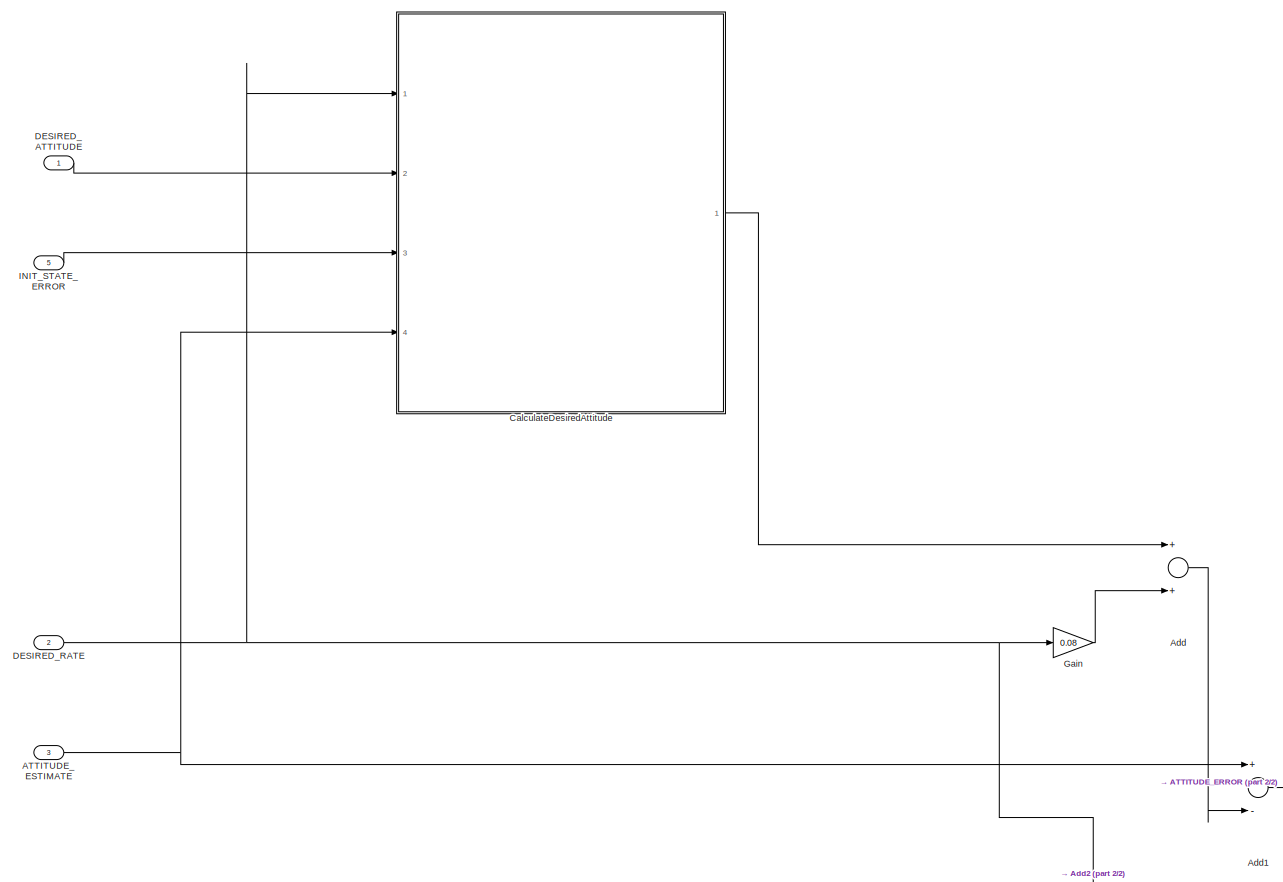
[diagram: root canvas - part 1/2, most of the canvas]
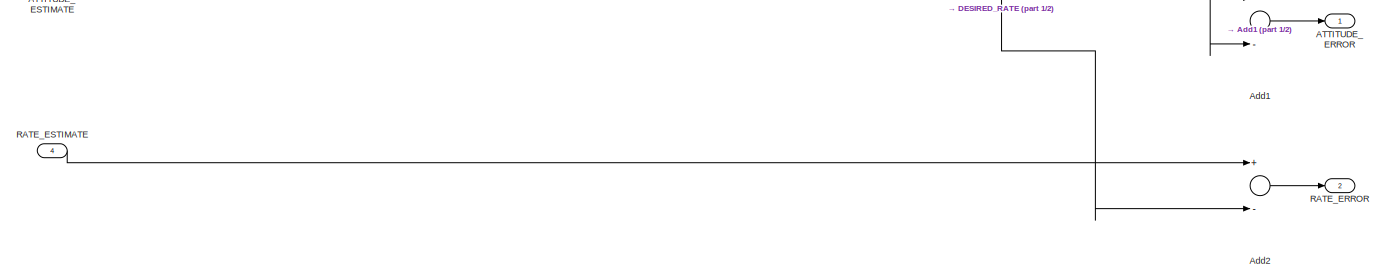
[diagram: root canvas - part 2/2, full width, bottom band]
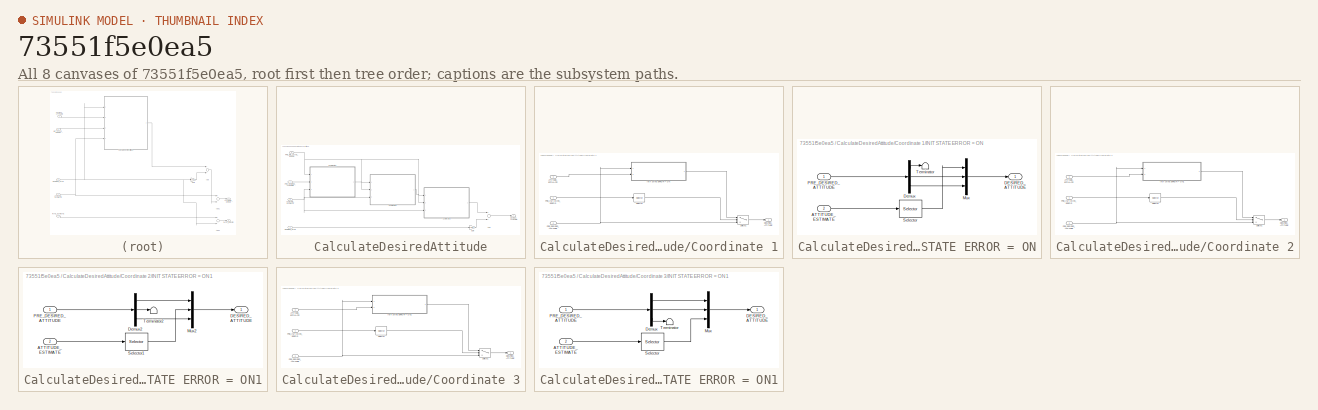
[diagram: thumbnail index - all 8 canvases of the model, root first then tree order]
MODEL slx_73551f5e0ea5
KIND model
CONFIG AbsTol = auto
CONFIG EnableMultiTasking = off
CONFIG FixedStep = 0.08
CONFIG MaxStep = auto
CONFIG MinStep = auto
CONFIG RelTol = 1e-3
CONFIG SampleTimeConstraint = Unconstrained
CONFIG Solver = FixedStepAuto
CONFIG SolverName = FixedStepAuto
CONFIG StartTime = 0.0
CONFIG StopTime = 10.0
BLOCK [Outport] ATTITUDE_ERROR
  IconDisplay = Port number
BLOCK [Inport] ATTITUDE_ESTIMATE
  IconDisplay = Port number
  Port = 3
  PortDimensions = 3
BLOCK [Sum] Add
  InputSameDT = off
  OutDataTypeStr = Inherit: Inherit via internal rule
  Ports = [2, 1]
  SaturateOnIntegerOverflow = off
BLOCK [Sum] Add1
  InputSameDT = off
  Inputs = +-
  OutDataTypeStr = Inherit: Inherit via internal rule
  Ports = [2, 1]
  SaturateOnIntegerOverflow = off
BLOCK [Sum] Add2
  InputSameDT = off
  Inputs = +-
  OutDataTypeStr = Inherit: Inherit via internal rule
  Ports = [2, 1]
  SaturateOnIntegerOverflow = off
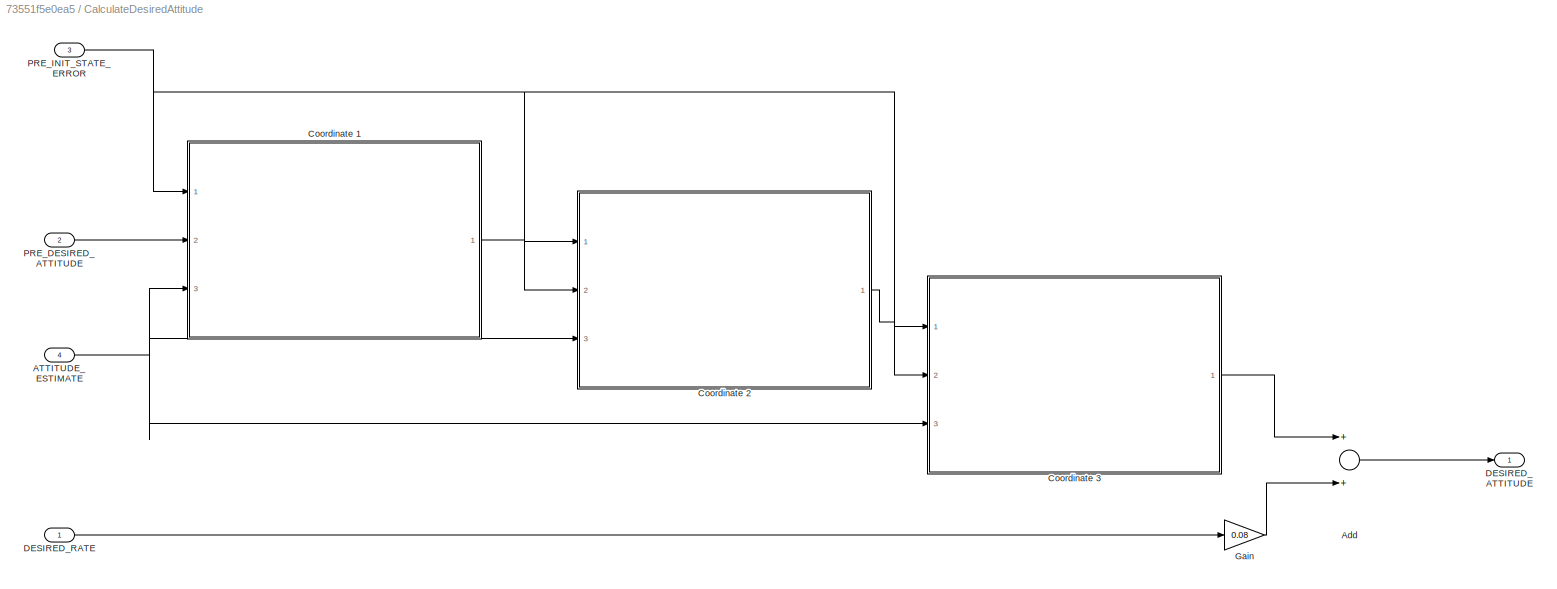
BLOCK [SubSystem] CalculateDesiredAttitude
  Ports = [4, 1]
  RequestExecContextInheritance = off
  Variant = off
BLOCK [Inport] CalculateDesiredAttitude/ATTITUDE_ESTIMATE
  IconDisplay = Port number
  Port = 4
  PortDimensions = 3
BLOCK [Sum] CalculateDesiredAttitude/Add
  InputSameDT = off
  OutDataTypeStr = Inherit: Inherit via internal rule
  Ports = [2, 1]
  SaturateOnIntegerOverflow = off
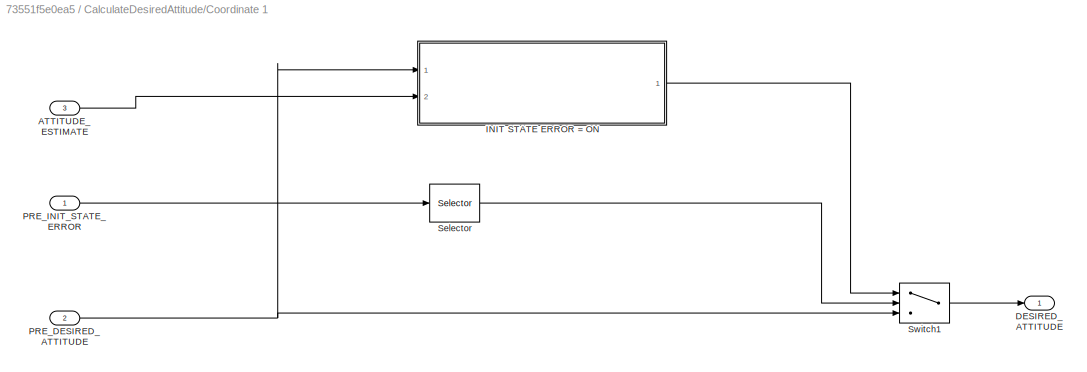
BLOCK [SubSystem] CalculateDesiredAttitude/Coordinate 1
  Ports = [3, 1]
  RequestExecContextInheritance = off
  Variant = off
BLOCK [Inport] CalculateDesiredAttitude/Coordinate 1/ATTITUDE_ESTIMATE
  IconDisplay = Port number
  Port = 3
BLOCK [Outport] CalculateDesiredAttitude/Coordinate 1/DESIRED_ATTITUDE
  IconDisplay = Port number
BLOCK [SubSystem] CalculateDesiredAttitude/Coordinate 1/INIT STATE ERROR = ON
  Ports = [2, 1]
  RequestExecContextInheritance = off
  TreatAsAtomicUnit = on
  Variant = off
BLOCK [Inport] CalculateDesiredAttitude/Coordinate 1/INIT STATE ERROR = ON/ATTITUDE_ESTIMATE
  IconDisplay = Port number
  Port = 2
BLOCK [Outport] CalculateDesiredAttitude/Coordinate 1/INIT STATE ERROR = ON/DESIRED_ATTITUDE
  IconDisplay = Port number
BLOCK [Demux] CalculateDesiredAttitude/Coordinate 1/INIT STATE ERROR = ON/Demux
  DisplayOption = bar
  Outputs = 3
  Ports = [1, 3]
BLOCK [Mux] CalculateDesiredAttitude/Coordinate 1/INIT STATE ERROR = ON/Mux
  DisplayOption = bar
  Inputs = 3
  Ports = [3, 1]
BLOCK [Inport] CalculateDesiredAttitude/Coordinate 1/INIT STATE ERROR = ON/PRE_DESIRED_ATTITUDE
  IconDisplay = Port number
BLOCK [Selector] CalculateDesiredAttitude/Coordinate 1/INIT STATE ERROR = ON/Selector
  IndexOptions = Index vector (dialog)
  Indices = [1]
  InputPortWidth = 3
  OutputSizes = 1
  Ports = [1, 1]
BLOCK [Terminator] CalculateDesiredAttitude/Coordinate 1/INIT STATE ERROR = ON/Terminator
BLOCK [Inport] CalculateDesiredAttitude/Coordinate 1/PRE_DESIRED_ATTITUDE
  IconDisplay = Port number
  Port = 2
BLOCK [Inport] CalculateDesiredAttitude/Coordinate 1/PRE_INIT_STATE_ERROR
  IconDisplay = Port number
BLOCK [Selector] CalculateDesiredAttitude/Coordinate 1/Selector
  IndexOptions = Index vector (dialog)
  Indices = [1]
  InputPortWidth = 3
  OutputSizes = 1
  Ports = [1, 1]
BLOCK [Switch] CalculateDesiredAttitude/Coordinate 1/Switch1
  Criteria = u2 ~= 0
  InputSameDT = off
  SaturateOnIntegerOverflow = off
BLOCK [SubSystem] CalculateDesiredAttitude/Coordinate 2
  Ports = [3, 1]
  RequestExecContextInheritance = off
  Variant = off
BLOCK [Inport] CalculateDesiredAttitude/Coordinate 2/ATTITUDE_ESTIMATE
  IconDisplay = Port number
  Port = 3
BLOCK [Outport] CalculateDesiredAttitude/Coordinate 2/DESIRED_ATTITUDE
  IconDisplay = Port number
BLOCK [SubSystem] CalculateDesiredAttitude/Coordinate 2/INIT STATE ERROR = ON1
  Ports = [2, 1]
  RequestExecContextInheritance = off
  TreatAsAtomicUnit = on
  Variant = off
BLOCK [Inport] CalculateDesiredAttitude/Coordinate 2/INIT STATE ERROR = ON1/ATTITUDE_ESTIMATE
  IconDisplay = Port number
  Port = 2
BLOCK [Outport] CalculateDesiredAttitude/Coordinate 2/INIT STATE ERROR = ON1/DESIRED_ATTITUDE
  IconDisplay = Port number
BLOCK [Demux] CalculateDesiredAttitude/Coordinate 2/INIT STATE ERROR = ON1/Demux2
  DisplayOption = bar
  Outputs = 3
  Ports = [1, 3]
BLOCK [Mux] CalculateDesiredAttitude/Coordinate 2/INIT STATE ERROR = ON1/Mux2
  DisplayOption = bar
  Inputs = 3
  Ports = [3, 1]
BLOCK [Inport] CalculateDesiredAttitude/Coordinate 2/INIT STATE ERROR = ON1/PRE_DESIRED_ATTITUDE
  IconDisplay = Port number
BLOCK [Selector] CalculateDesiredAttitude/Coordinate 2/INIT STATE ERROR = ON1/Selector1
  IndexOptions = Index vector (dialog)
  Indices = 2
  InputPortWidth = 3
  OutputSizes = 1
  Ports = [1, 1]
BLOCK [Terminator] CalculateDesiredAttitude/Coordinate 2/INIT STATE ERROR = ON1/Terminator2
BLOCK [Inport] CalculateDesiredAttitude/Coordinate 2/PRE_DESIRED_ATTITUDE
  IconDisplay = Port number
  Port = 2
BLOCK [Inport] CalculateDesiredAttitude/Coordinate 2/PRE_INIT_STATE_ERROR
  IconDisplay = Port number
BLOCK [Selector] CalculateDesiredAttitude/Coordinate 2/Selector
  IndexOptions = Index vector (dialog)
  Indices = 2
  InputPortWidth = 3
  OutputSizes = 1
  Ports = [1, 1]
BLOCK [Switch] CalculateDesiredAttitude/Coordinate 2/Switch1
  Criteria = u2 ~= 0
  InputSameDT = off
  SaturateOnIntegerOverflow = off
BLOCK [SubSystem] CalculateDesiredAttitude/Coordinate 3
  Ports = [3, 1]
  RequestExecContextInheritance = off
  Variant = off
BLOCK [Inport] CalculateDesiredAttitude/Coordinate 3/ATTITUDE_ESTIMATE
  IconDisplay = Port number
  Port = 3
BLOCK [Outport] CalculateDesiredAttitude/Coordinate 3/DESIRED_ATTITUDE
  IconDisplay = Port number
BLOCK [SubSystem] CalculateDesiredAttitude/Coordinate 3/INIT STATE ERROR = ON1
  Ports = [2, 1]
  RequestExecContextInheritance = off
  TreatAsAtomicUnit = on
  Variant = off
BLOCK [Inport] CalculateDesiredAttitude/Coordinate 3/INIT STATE ERROR = ON1/ATTITUDE_ESTIMATE
  IconDisplay = Port number
  Port = 2
BLOCK [Outport] CalculateDesiredAttitude/Coordinate 3/INIT STATE ERROR = ON1/DESIRED_ATTITUDE
  IconDisplay = Port number
BLOCK [Demux] CalculateDesiredAttitude/Coordinate 3/INIT STATE ERROR = ON1/Demux
  DisplayOption = bar
  Outputs = 3
  Ports = [1, 3]
BLOCK [Mux] CalculateDesiredAttitude/Coordinate 3/INIT STATE ERROR = ON1/Mux
  DisplayOption = bar
  Inputs = 3
  Ports = [3, 1]
BLOCK [Inport] CalculateDesiredAttitude/Coordinate 3/INIT STATE ERROR = ON1/PRE_DESIRED_ATTITUDE
  IconDisplay = Port number
BLOCK [Selector] CalculateDesiredAttitude/Coordinate 3/INIT STATE ERROR = ON1/Selector
  IndexOptions = Index vector (dialog)
  Indices = 3
  InputPortWidth = 3
  OutputSizes = 1
  Ports = [1, 1]
BLOCK [Terminator] CalculateDesiredAttitude/Coordinate 3/INIT STATE ERROR = ON1/Terminator
BLOCK [Inport] CalculateDesiredAttitude/Coordinate 3/PRE_DESIRED_ATTITUDE
  IconDisplay = Port number
  Port = 2
BLOCK [Inport] CalculateDesiredAttitude/Coordinate 3/PRE_INIT_STATE_ERROR
  IconDisplay = Port number
BLOCK [Selector] CalculateDesiredAttitude/Coordinate 3/Selector
  IndexOptions = Index vector (dialog)
  Indices = 3
  InputPortWidth = 3
  OutputSizes = 1
  Ports = [1, 1]
BLOCK [Switch] CalculateDesiredAttitude/Coordinate 3/Switch1
  Criteria = u2 ~= 0
  InputSameDT = off
  SaturateOnIntegerOverflow = off
BLOCK [Outport] CalculateDesiredAttitude/DESIRED_ATTITUDE
  IconDisplay = Port number
BLOCK [Inport] CalculateDesiredAttitude/DESIRED_RATE
  IconDisplay = Port number
  PortDimensions = 3
BLOCK [Gain] CalculateDesiredAttitude/Gain
  Gain = 0.08
  OutDataTypeStr = Inherit: Inherit via internal rule
  ParamDataTypeStr = Inherit: Inherit via internal rule
  SaturateOnIntegerOverflow = off
BLOCK [Inport] CalculateDesiredAttitude/PRE_DESIRED_ATTITUDE
  IconDisplay = Port number
  Port = 2
  PortDimensions = 3
BLOCK [Inport] CalculateDesiredAttitude/PRE_INIT_STATE_ERROR
  IconDisplay = Port number
  OutDataTypeStr = boolean
  Port = 3
  PortDimensions = 3
BLOCK [Inport] DESIRED_ATTITUDE
  IconDisplay = Port number
  PortDimensions = 3
BLOCK [Inport] DESIRED_RATE
  IconDisplay = Port number
  Port = 2
  PortDimensions = 3
BLOCK [Gain] Gain
  Gain = 0.08
  OutDataTypeStr = Inherit: Inherit via internal rule
  ParamDataTypeStr = Inherit: Inherit via internal rule
  SaturateOnIntegerOverflow = off
BLOCK [Inport] INIT_STATE_ERROR
  IconDisplay = Port number
  Port = 5
BLOCK [Outport] RATE_ERROR
  IconDisplay = Port number
  Port = 2
BLOCK [Inport] RATE_ESTIMATE
  IconDisplay = Port number
  Port = 4
  PortDimensions = 3
NET ATTITUDE_ESTIMATE:1 -> Add1:1, CalculateDesiredAttitude:4
LINE Add1:1 -> ATTITUDE_ERROR:1
LINE Add2:1 -> RATE_ERROR:1
LINE Add:1 -> Add1:2
NET CalculateDesiredAttitude/ATTITUDE_ESTIMATE:1 -> CalculateDesiredAttitude/Coordinate 1:3, CalculateDesiredAttitude/Coordinate 2:3, CalculateDesiredAttitude/Coordinate 3:3
LINE CalculateDesiredAttitude/Add:1 -> CalculateDesiredAttitude/DESIRED_ATTITUDE:1
LINE CalculateDesiredAttitude/Coordinate 1/ATTITUDE_ESTIMATE:1 -> CalculateDesiredAttitude/Coordinate 1/INIT STATE ERROR = ON:2
LINE CalculateDesiredAttitude/Coordinate 1/INIT STATE ERROR = ON/ATTITUDE_ESTIMATE:1 -> CalculateDesiredAttitude/Coordinate 1/INIT STATE ERROR = ON/Selector:1
LINE CalculateDesiredAttitude/Coordinate 1/INIT STATE ERROR = ON/Demux:1 -> CalculateDesiredAttitude/Coordinate 1/INIT STATE ERROR = ON/Terminator:1
LINE CalculateDesiredAttitude/Coordinate 1/INIT STATE ERROR = ON/Demux:2 -> CalculateDesiredAttitude/Coordinate 1/INIT STATE ERROR = ON/Mux:2
LINE CalculateDesiredAttitude/Coordinate 1/INIT STATE ERROR = ON/Demux:3 -> CalculateDesiredAttitude/Coordinate 1/INIT STATE ERROR = ON/Mux:3
LINE CalculateDesiredAttitude/Coordinate 1/INIT STATE ERROR = ON/Mux:1 -> CalculateDesiredAttitude/Coordinate 1/INIT STATE ERROR = ON/DESIRED_ATTITUDE:1
LINE CalculateDesiredAttitude/Coordinate 1/INIT STATE ERROR = ON/PRE_DESIRED_ATTITUDE:1 -> CalculateDesiredAttitude/Coordinate 1/INIT STATE ERROR = ON/Demux:1
LINE CalculateDesiredAttitude/Coordinate 1/INIT STATE ERROR = ON/Selector:1 -> CalculateDesiredAttitude/Coordinate 1/INIT STATE ERROR = ON/Mux:1
LINE CalculateDesiredAttitude/Coordinate 1/INIT STATE ERROR = ON:1 -> CalculateDesiredAttitude/Coordinate 1/Switch1:1
NET CalculateDesiredAttitude/Coordinate 1/PRE_DESIRED_ATTITUDE:1 -> CalculateDesiredAttitude/Coordinate 1/INIT STATE ERROR = ON:1, CalculateDesiredAttitude/Coordinate 1/Switch1:3
LINE CalculateDesiredAttitude/Coordinate 1/PRE_INIT_STATE_ERROR:1 -> CalculateDesiredAttitude/Coordinate 1/Selector:1
LINE CalculateDesiredAttitude/Coordinate 1/Selector:1 -> CalculateDesiredAttitude/Coordinate 1/Switch1:2
LINE CalculateDesiredAttitude/Coordinate 1/Switch1:1 -> CalculateDesiredAttitude/Coordinate 1/DESIRED_ATTITUDE:1
LINE CalculateDesiredAttitude/Coordinate 1:1 -> CalculateDesiredAttitude/Coordinate 2:2
LINE CalculateDesiredAttitude/Coordinate 2/ATTITUDE_ESTIMATE:1 -> CalculateDesiredAttitude/Coordinate 2/INIT STATE ERROR = ON1:2
LINE CalculateDesiredAttitude/Coordinate 2/INIT STATE ERROR = ON1/ATTITUDE_ESTIMATE:1 -> CalculateDesiredAttitude/Coordinate 2/INIT STATE ERROR = ON1/Selector1:1
LINE CalculateDesiredAttitude/Coordinate 2/INIT STATE ERROR = ON1/Demux2:1 -> CalculateDesiredAttitude/Coordinate 2/INIT STATE ERROR = ON1/Mux2:1
LINE CalculateDesiredAttitude/Coordinate 2/INIT STATE ERROR = ON1/Demux2:2 -> CalculateDesiredAttitude/Coordinate 2/INIT STATE ERROR = ON1/Terminator2:1
LINE CalculateDesiredAttitude/Coordinate 2/INIT STATE ERROR = ON1/Demux2:3 -> CalculateDesiredAttitude/Coordinate 2/INIT STATE ERROR = ON1/Mux2:3
LINE CalculateDesiredAttitude/Coordinate 2/INIT STATE ERROR = ON1/Mux2:1 -> CalculateDesiredAttitude/Coordinate 2/INIT STATE ERROR = ON1/DESIRED_ATTITUDE:1
LINE CalculateDesiredAttitude/Coordinate 2/INIT STATE ERROR = ON1/PRE_DESIRED_ATTITUDE:1 -> CalculateDesiredAttitude/Coordinate 2/INIT STATE ERROR = ON1/Demux2:1
LINE CalculateDesiredAttitude/Coordinate 2/INIT STATE ERROR = ON1/Selector1:1 -> CalculateDesiredAttitude/Coordinate 2/INIT STATE ERROR = ON1/Mux2:2
LINE CalculateDesiredAttitude/Coordinate 2/INIT STATE ERROR = ON1:1 -> CalculateDesiredAttitude/Coordinate 2/Switch1:1
NET CalculateDesiredAttitude/Coordinate 2/PRE_DESIRED_ATTITUDE:1 -> CalculateDesiredAttitude/Coordinate 2/INIT STATE ERROR = ON1:1, CalculateDesiredAttitude/Coordinate 2/Switch1:3
LINE CalculateDesiredAttitude/Coordinate 2/PRE_INIT_STATE_ERROR:1 -> CalculateDesiredAttitude/Coordinate 2/Selector:1
LINE CalculateDesiredAttitude/Coordinate 2/Selector:1 -> CalculateDesiredAttitude/Coordinate 2/Switch1:2
LINE CalculateDesiredAttitude/Coordinate 2/Switch1:1 -> CalculateDesiredAttitude/Coordinate 2/DESIRED_ATTITUDE:1
LINE CalculateDesiredAttitude/Coordinate 2:1 -> CalculateDesiredAttitude/Coordinate 3:2
LINE CalculateDesiredAttitude/Coordinate 3/ATTITUDE_ESTIMATE:1 -> CalculateDesiredAttitude/Coordinate 3/INIT STATE ERROR = ON1:2
LINE CalculateDesiredAttitude/Coordinate 3/INIT STATE ERROR = ON1/ATTITUDE_ESTIMATE:1 -> CalculateDesiredAttitude/Coordinate 3/INIT STATE ERROR = ON1/Selector:1
LINE CalculateDesiredAttitude/Coordinate 3/INIT STATE ERROR = ON1/Demux:1 -> CalculateDesiredAttitude/Coordinate 3/INIT STATE ERROR = ON1/Mux:1
LINE CalculateDesiredAttitude/Coordinate 3/INIT STATE ERROR = ON1/Demux:2 -> CalculateDesiredAttitude/Coordinate 3/INIT STATE ERROR = ON1/Mux:2
LINE CalculateDesiredAttitude/Coordinate 3/INIT STATE ERROR = ON1/Demux:3 -> CalculateDesiredAttitude/Coordinate 3/INIT STATE ERROR = ON1/Terminator:1
LINE CalculateDesiredAttitude/Coordinate 3/INIT STATE ERROR = ON1/Mux:1 -> CalculateDesiredAttitude/Coordinate 3/INIT STATE ERROR = ON1/DESIRED_ATTITUDE:1
LINE CalculateDesiredAttitude/Coordinate 3/INIT STATE ERROR = ON1/PRE_DESIRED_ATTITUDE:1 -> CalculateDesiredAttitude/Coordinate 3/INIT STATE ERROR = ON1/Demux:1
LINE CalculateDesiredAttitude/Coordinate 3/INIT STATE ERROR = ON1/Selector:1 -> CalculateDesiredAttitude/Coordinate 3/INIT STATE ERROR = ON1/Mux:3
LINE CalculateDesiredAttitude/Coordinate 3/INIT STATE ERROR = ON1:1 -> CalculateDesiredAttitude/Coordinate 3/Switch1:1
NET CalculateDesiredAttitude/Coordinate 3/PRE_DESIRED_ATTITUDE:1 -> CalculateDesiredAttitude/Coordinate 3/INIT STATE ERROR = ON1:1, CalculateDesiredAttitude/Coordinate 3/Switch1:3
LINE CalculateDesiredAttitude/Coordinate 3/PRE_INIT_STATE_ERROR:1 -> CalculateDesiredAttitude/Coordinate 3/Selector:1
LINE CalculateDesiredAttitude/Coordinate 3/Selector:1 -> CalculateDesiredAttitude/Coordinate 3/Switch1:2
LINE CalculateDesiredAttitude/Coordinate 3/Switch1:1 -> CalculateDesiredAttitude/Coordinate 3/DESIRED_ATTITUDE:1
LINE CalculateDesiredAttitude/Coordinate 3:1 -> CalculateDesiredAttitude/Add:1
LINE CalculateDesiredAttitude/DESIRED_RATE:1 -> CalculateDesiredAttitude/Gain:1
LINE CalculateDesiredAttitude/Gain:1 -> CalculateDesiredAttitude/Add:2
LINE CalculateDesiredAttitude/PRE_DESIRED_ATTITUDE:1 -> CalculateDesiredAttitude/Coordinate 1:2
NET CalculateDesiredAttitude/PRE_INIT_STATE_ERROR:1 -> CalculateDesiredAttitude/Coordinate 1:1, CalculateDesiredAttitude/Coordinate 2:1, CalculateDesiredAttitude/Coordinate 3:1
LINE CalculateDesiredAttitude:1 -> Add:1
LINE DESIRED_ATTITUDE:1 -> CalculateDesiredAttitude:2
NET DESIRED_RATE:1 -> Add2:2, CalculateDesiredAttitude:1, Gain:1
LINE Gain:1 -> Add:2
LINE INIT_STATE_ERROR:1 -> CalculateDesiredAttitude:3
LINE RATE_ESTIMATE:1 -> Add2:1
note: NET lines group one-source signal fan-out (src -> all destinations, sorted); 1:1 wires keep LINE
